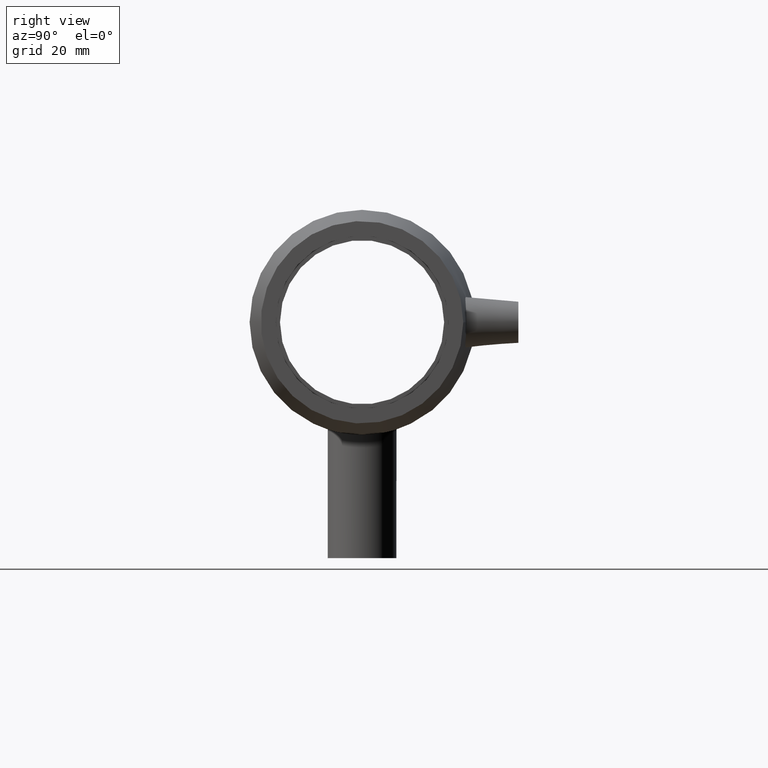
[diagram: clean part render]
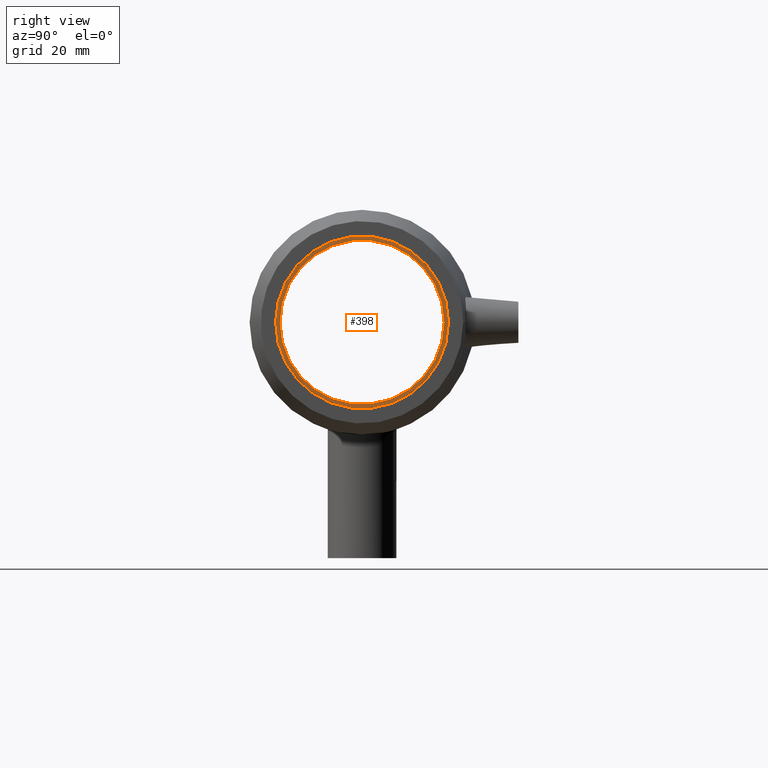
[diagram: same view with one face highlighted and labeled with its STEP entity id]
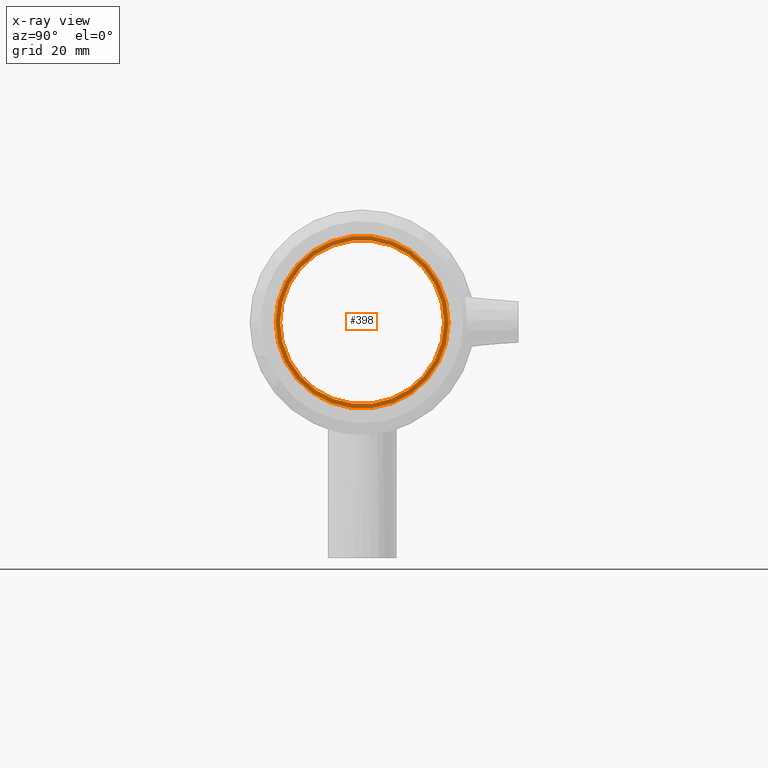
[diagram: x-ray of the same camera — body ghosted, the highlighted face saturated]
A machine part, right view. The second image highlights one B-rep face of the part: STEP entity #398.
The next image is the same camera in x-ray: the body ghosted, the highlighted face saturated — about 0% of this face is hidden behind the body in this view.
In plain terms, the highlighted planar face has unit normal (1, 0, 0).
Its self-contained STEP definition (entity closure, byte-faithful):
#31=PLANE('',#456);
#61=FACE_BOUND('',#189,.T.);
#94=CIRCLE('',#455,31.5);
#95=CIRCLE('',#457,29.925);
#128=FACE_OUTER_BOUND('',#188,.T.);
#188=EDGE_LOOP('',(#338));
#189=EDGE_LOOP('',(#339));
#242=VERTEX_POINT('',#881);
#243=VERTEX_POINT('',#884);
#278=EDGE_CURVE('',#242,#242,#94,.T.);
#279=EDGE_CURVE('',#243,#243,#95,.T.);
#338=ORIENTED_EDGE('',*,*,#278,.T.);
#339=ORIENTED_EDGE('',*,*,#279,.F.);
#398=ADVANCED_FACE('',(#128,#61),#31,.T.);
#455=AXIS2_PLACEMENT_3D('',#882,#567,#568);
#456=AXIS2_PLACEMENT_3D('',#883,#569,#570);
#457=AXIS2_PLACEMENT_3D('',#885,#571,#572);
#567=DIRECTION('center_axis',(1.,0.,0.));
#568=DIRECTION('ref_axis',(0.,0.,-1.));
#569=DIRECTION('center_axis',(1.,0.,0.));
#570=DIRECTION('ref_axis',(0.,0.,-1.));
#571=DIRECTION('center_axis',(1.,0.,0.));
#572=DIRECTION('ref_axis',(0.,0.,-1.));
#881=CARTESIAN_POINT('',(48.5,31.5,0.));
#882=CARTESIAN_POINT('Origin',(48.5,0.,0.));
#883=CARTESIAN_POINT('Origin',(48.5,29.925,0.));
#884=CARTESIAN_POINT('',(48.5,29.925,0.));
#885=CARTESIAN_POINT('Origin',(48.5,0.,0.));